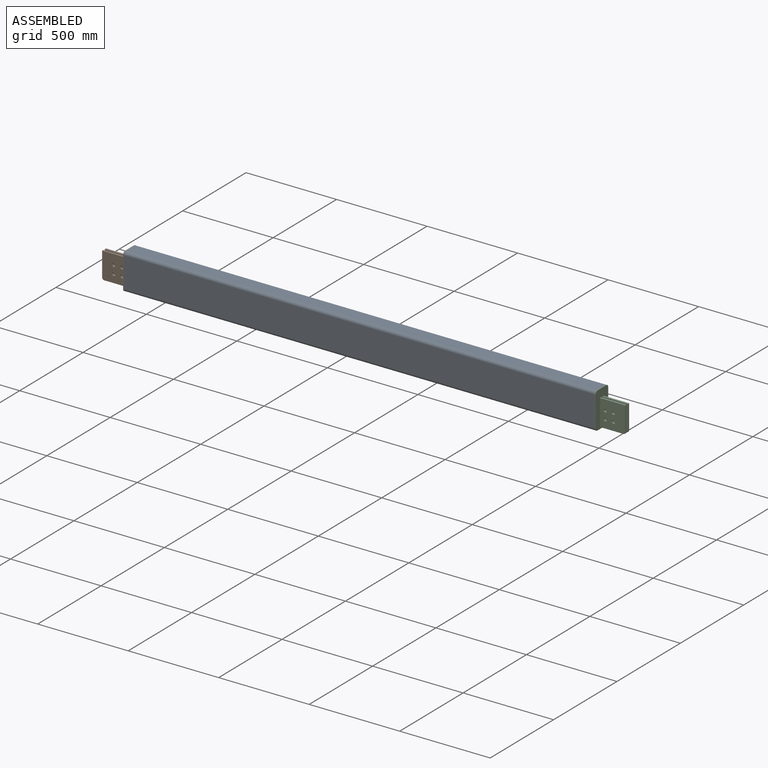
[diagram: assembled view]
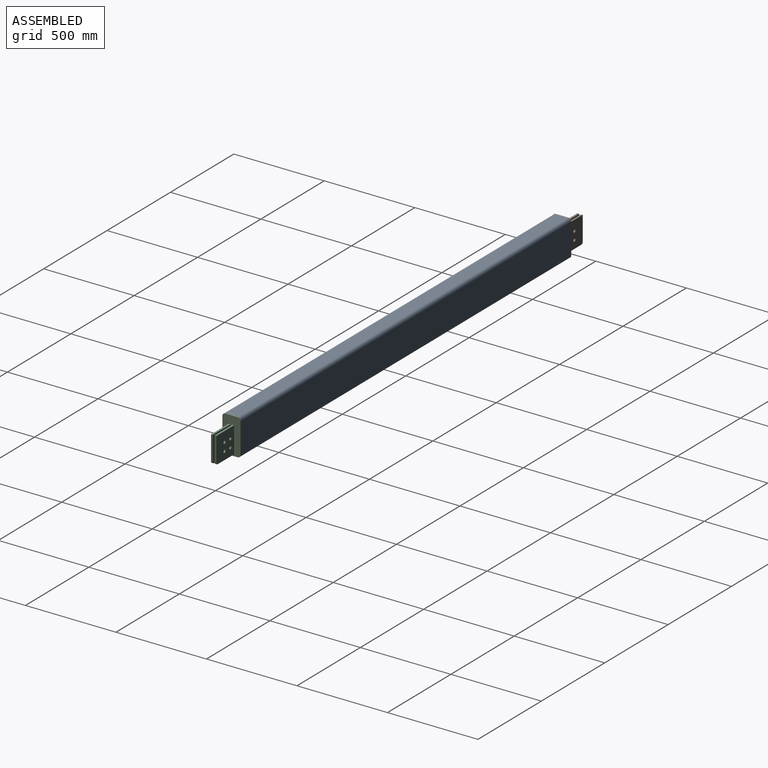
[diagram: assembled view, second angle]
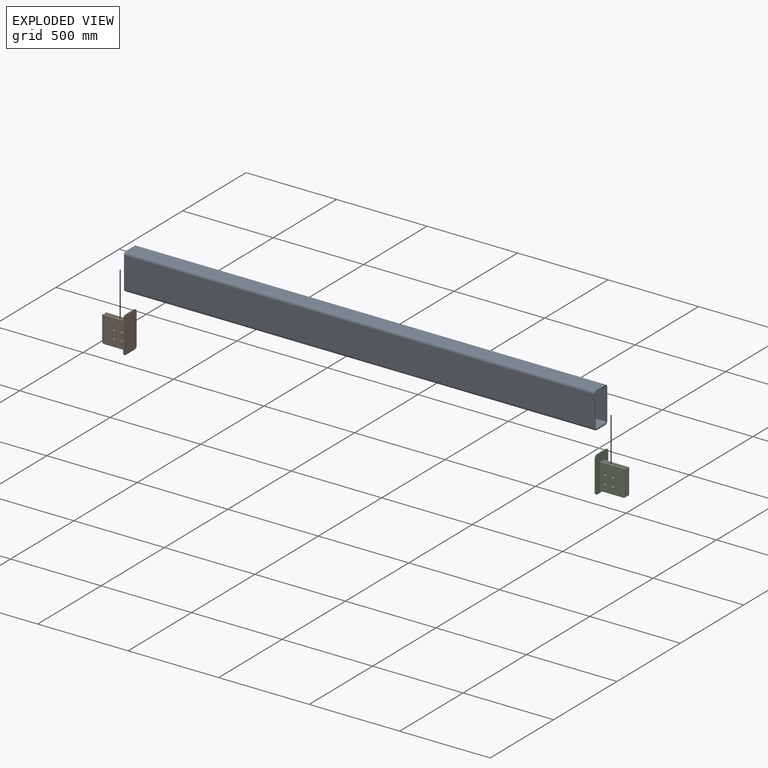
[diagram: exploded view]
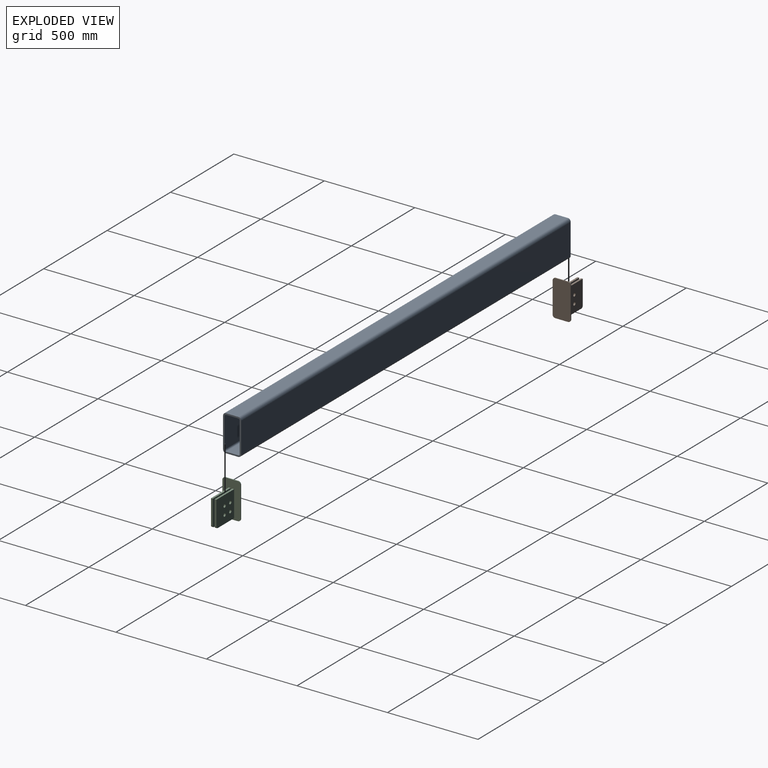
[diagram: exploded view, second angle]
ASSEMBLY  parts=3 mates=2
PART A: 18 faces, bbox 2600x100x200 mm
  f0: cylinder r=15.99mm len=2600mm, axis (-1,0,0), area 65353.9mm2, adj f6,f7,f8,f9
  f1: cylinder r=15.99mm len=2600mm, axis (-1,0,0), area 65353.9mm2, adj f5,f7,f8,f9
  f2: cylinder r=15.99mm len=2600mm, axis (-1,0,0), area 65353.9mm2, adj f3,f5,f8,f9
  f3: plane 2600x68mm, normal (0,0,1), area 176800mm2, adj f2,f4,f8,f9
  f4: cylinder r=15.99mm len=2600mm, axis (-1,0,0), area 65353.9mm2, adj f3,f6,f8,f9
  f5: plane 2600x168mm, normal (0,1,0), area 436800mm2, adj f1,f2,f8,f9
  f6: plane 2600x168mm, normal (0,-1,0), area 436800mm2, adj f0,f4,f8,f9
  f7: plane 2600x68mm, normal (0,0,-1), area 176800mm2, adj f0,f1,f8,f9
  f8: plane 200x100mm, normal (1,0,0), area 4379.4mm2, adj f0,f1,f2,f3,f4,f5,f6,f7
  f9: plane 200x100mm, normal (-1,0,0), area 4379.4mm2, adj f0,f1,f2,f3,f4,f5,f6,f7
  f10: plane 2600x168mm, normal (0,-1,0), area 436800mm2, adj f8,f9,f11,f17
  f11: cylinder r=8mm len=2600mm, axis (-1,0,0), area 32673.1mm2, adj f8,f9,f10,f12
  f12: plane 2600x68mm, normal (0,0,-1), area 176800mm2, adj f8,f9,f11,f13
  f13: cylinder r=8mm len=2600mm, axis (-1,0,0), area 32673.1mm2, adj f8,f9,f12,f14
  f14: plane 2600x168mm, normal (0,1,0), area 436800mm2, adj f8,f9,f13,f15
  f15: cylinder r=8mm len=2600mm, axis (-1,0,0), area 32673.1mm2, adj f8,f9,f14,f16
  f16: plane 2600x68mm, normal (0,0,1), area 176800mm2, adj f8,f9,f15,f17
  f17: cylinder r=8mm len=2600mm, axis (-1,0,0), area 32673.1mm2, adj f8,f9,f10,f16
PART B: 31 faces, bbox 145x100x200 mm
  f0: plane 145x140mm, normal (0,-1,0), area 19260.7mm2, adj f2,f9,f17,f19,f21,f23,f25,f27
  f1: plane 135x10mm, normal (1,0,0), area 1350mm2, adj f3,f4,f20,f29
  f2: plane 135x9.75mm, normal (1,0,0), area 1315.8mm2, adj f0,f5,f19,f30
  f3: plane 145x140mm, normal (0,1,0), area 19260.7mm2, adj f1,f9,f18,f20,f22,f24,f26,f28
  f4: plane 145x140mm, normal (0,-1,0), area 19260.7mm2, adj f1,f9,f18,f20,f22,f24,f26,f28
  f5: plane 145x45mm, normal (0.01,1,0), area 6503.6mm2, adj f2,f6,f17,f19,f30
  f6: plane 145x95mm, normal (0,1,0), area 12757.1mm2, adj f5,f9,f17,f21,f23,f25,f27,f30
  f7: plane 70x5mm, normal (0,0,1), area 350mm2, adj f9,f11,f15,f16
  f8: plane 70x5mm, normal (0,0,-1), area 350mm2, adj f9,f11,f13,f14
  f9: plane 200x100mm, normal (1,0,0), area 16906.9mm2, adj f0,f3,f4,f6,f7,f8,f10,f12
  f10: plane 170x5mm, normal (0,1,0), area 850mm2, adj f9,f11,f13,f15
  f11: plane 200x100mm, normal (-1,0,0), area 19806.9mm2, adj f7,f8,f10,f12,f13,f14,f15,f16
  f12: plane 170x5mm, normal (0,-1,0), area 850mm2, adj f9,f11,f14,f16
  f13: cylinder r=15mm len=15mm, axis (-1,0,0), area 117.8mm2, adj f8,f9,f10,f11
  f14: cylinder r=15mm len=15mm, axis (1,0,0), area 117.8mm2, adj f8,f9,f11,f12
  f15: cylinder r=15mm len=15mm, axis (1,0,0), area 117.8mm2, adj f7,f9,f10,f11
  f16: cylinder r=15mm len=15mm, axis (-1,0,0), area 117.8mm2, adj f7,f9,f11,f12
  f17: plane 130x10mm, normal (0,0,-1), area 1296.6mm2, adj f0,f5,f6,f9,f19
  f18: plane 130x10mm, normal (0,0,-1), area 1300mm2, adj f3,f4,f9,f20
  f19: cylinder r=10mm len=10mm, axis (0,1,0), area 153.4mm2, adj f0,f2,f5,f17
  f20: cylinder r=10mm len=10mm, axis (0,1,0), area 157.1mm2, adj f1,f3,f4,f18
  f21: cylinder r=9mm len=18mm, axis (0,-1,0), area 565.5mm2, adj f0,f6
  f22: cylinder r=9mm len=18mm, axis (0,-1,0), area 565.5mm2, adj f3,f4
  f23: cylinder r=9mm len=18mm, axis (0,-1,0), area 565.5mm2, adj f0,f6
  f24: cylinder r=9mm len=18mm, axis (0,-1,0), area 565.5mm2, adj f3,f4
  f25: cylinder r=9mm len=18mm, axis (0,-1,0), area 565.5mm2, adj f0,f6
  f26: cylinder r=9mm len=18mm, axis (0,-1,0), area 565.5mm2, adj f3,f4
  f27: cylinder r=9mm len=18mm, axis (0,-1,0), area 565.5mm2, adj f0,f6
  f28: cylinder r=9mm len=18mm, axis (0,-1,0), area 565.5mm2, adj f3,f4
  f29: plane 140x10mm, normal (0,0,1), area 1400mm2, adj f1,f3,f4,f9
  f30: plane 140x10mm, normal (0,0,1), area 1394.3mm2, adj f0,f2,f5,f6,f9
PART C: same geometry as B
PLACE A t=(134.49,-1154.34,227.02)mm
PLACE B rot(axis=(0,0,1),180deg) t=(-1265.51,395.66,227.02)mm
PLACE C t=(1534.49,395.66,227.02)mm
MATE fastened C.f7 <-> A.f3  axis (0,0,1) through (1434.49,395.66,427.02)mm
MATE fastened B.f7 <-> A.f3  axis (0,0,1) through (-1165.51,395.66,427.02)mm
